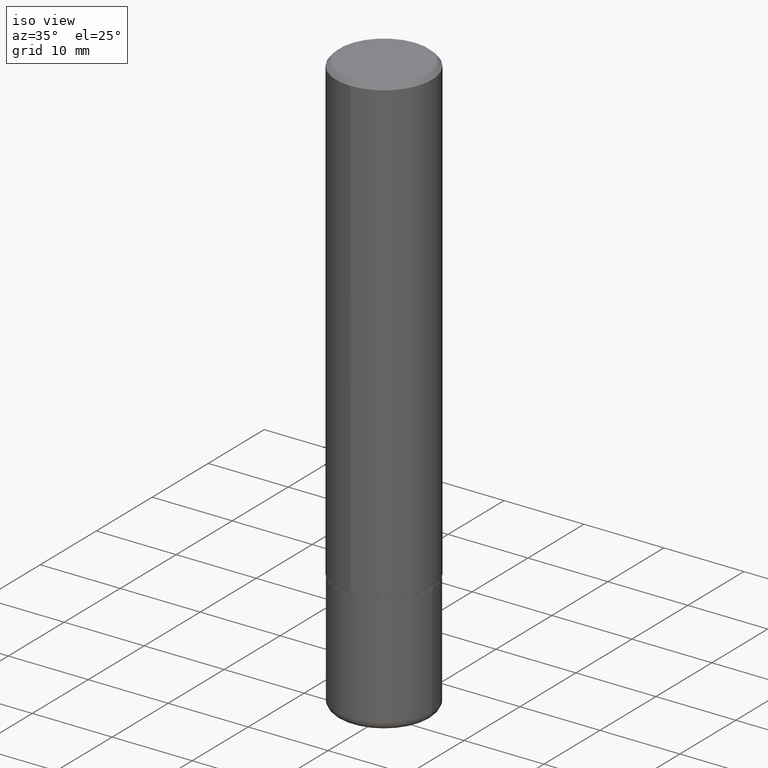
[diagram: clean part render]
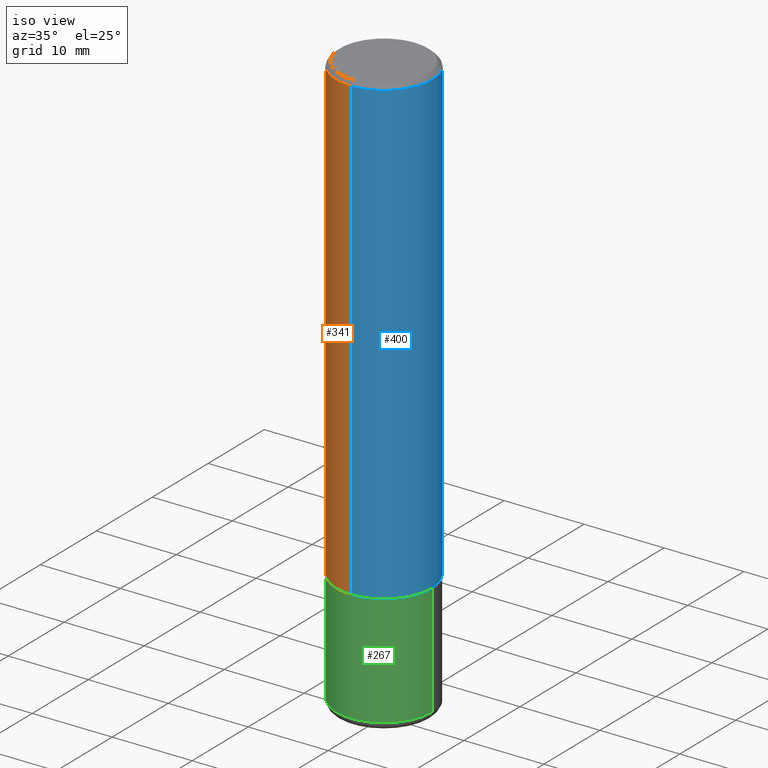
[diagram: same view with three faces highlighted in distinct colors, each labeled with its STEP entity id]
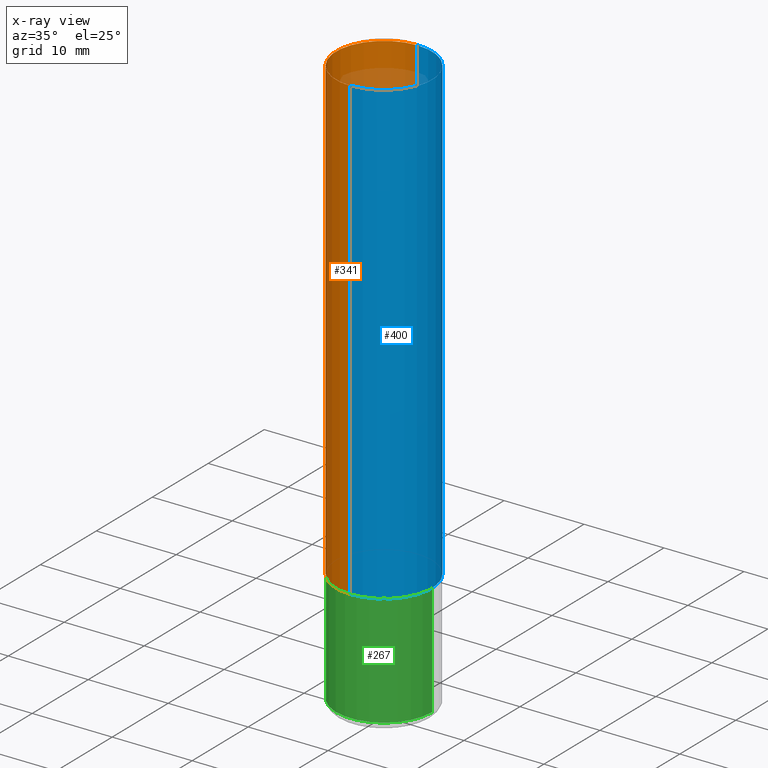
[diagram: x-ray of the same camera — body ghosted, the three highlighted faces saturated]
A machine part, iso view with three faces highlighted in distinct colors.
The next image is the same camera in x-ray (body ghosted, the three faces saturated) — at least one of them is partly hidden behind the body in this view.
Their STEP definitions:

[orange] entity #341 — the highlighted cylindrical surface (partial cylindrical patch) has radius 5.9995 mm, axis along (-0, 0, 1).
#1 = VECTOR ( 'NONE', #210, 39.37007874015748143 ) ;
#9 = DIRECTION ( 'NONE',  ( -2.441304056985800386E-29, 3.497445496739398544E-15, 1.000000000000000000 ) ) ;
#11 = DIRECTION ( 'NONE',  ( -2.441304056985800386E-29, 3.497445496739398544E-15, 1.000000000000000000 ) ) ;
#15 = CARTESIAN_POINT ( 'NONE',  ( -1.649375784469442291E-15, -0.2362000000000082922, -2.282399999999999096 ) ) ;
#16 = VERTEX_POINT ( 'NONE', #147 ) ;
#18 = DIRECTION ( 'NONE',  ( -2.441304056985800386E-29, 3.497445496739398544E-15, 1.000000000000000000 ) ) ;
#28 = EDGE_LOOP ( 'NONE', ( #228, #204, #30, #327 ) ) ;
#30 = ORIENTED_EDGE ( 'NONE', *, *, #38, .T. ) ;
#38 = EDGE_CURVE ( 'NONE', #231, #265, #302, .T. ) ;
#47 = DIRECTION ( 'NONE',  ( -6.982962677686265922E-15, -1.000000000000000000, 3.505890868245046486E-15 ) ) ;
#49 = EDGE_CURVE ( 'NONE', #16, #277, #397, .T. ) ;
#77 = CYLINDRICAL_SURFACE ( 'NONE', #402, 0.2362000000000001321 ) ;
#91 = CARTESIAN_POINT ( 'NONE',  ( 1.649375784469496131E-15, 0.2361999999999998823, -0.02000000000000091635 ) ) ;
#94 = CIRCLE ( 'NONE', #309, 0.2362000000000002986 ) ;
#109 = FACE_OUTER_BOUND ( 'NONE', #28, .T. ) ;
#116 = CARTESIAN_POINT ( 'NONE',  ( -1.649375784469496920E-15, -0.2362000000000001321, 8.260966263298463996E-16 ) ) ;
#129 = DIRECTION ( 'NONE',  ( -2.441304056985800386E-29, 3.497445496739398544E-15, 1.000000000000000000 ) ) ;
#146 = DIRECTION ( 'NONE',  ( -6.982962677686265922E-15, -1.000000000000000000, 3.469747663417772663E-15 ) ) ;
#147 = CARTESIAN_POINT ( 'NONE',  ( 1.678301941865386174E-15, 0.2361999999999923050, -2.282400000000000873 ) ) ;
#149 = CARTESIAN_POINT ( 'NONE',  ( 1.678301941865357380E-15, 0.2362000000000001321, -8.260966263298463996E-16 ) ) ;
#179 = CARTESIAN_POINT ( 'NONE',  ( 5.572032379664390786E-29, -7.982569601758002495E-15, -2.282399999999999984 ) ) ;
#204 = ORIENTED_EDGE ( 'NONE', *, *, #261, .T. ) ;
#210 = DIRECTION ( 'NONE',  ( -2.441304056985800386E-29, 3.497445496739398544E-15, 1.000000000000000000 ) ) ;
#228 = ORIENTED_EDGE ( 'NONE', *, *, #49, .F. ) ;
#231 = VERTEX_POINT ( 'NONE', #15 ) ;
#241 = EDGE_CURVE ( 'NONE', #277, #265, #363, .T. ) ;
#254 = CARTESIAN_POINT ( 'NONE',  ( 4.882608113971623124E-31, -6.994890993478827754E-17, -0.02000000000000009062 ) ) ;
#261 = EDGE_CURVE ( 'NONE', #16, #231, #94, .T. ) ;
#263 = AXIS2_PLACEMENT_3D ( 'NONE', #254, #18, #47 ) ;
#265 = VERTEX_POINT ( 'NONE', #399 ) ;
#277 = VERTEX_POINT ( 'NONE', #91 ) ;
#302 = LINE ( 'NONE', #116, #1 ) ;
#306 = DIRECTION ( 'NONE',  ( -6.982962677686265922E-15, -1.000000000000000000, 3.497445496739398544E-15 ) ) ;
#309 = AXIS2_PLACEMENT_3D ( 'NONE', #179, #129, #146 ) ;
#327 = ORIENTED_EDGE ( 'NONE', *, *, #241, .F. ) ;
#341 = ADVANCED_FACE ( 'NONE', ( #109 ), #77, .T. ) ;
#363 = CIRCLE ( 'NONE', #263, 0.2361999999999999655 ) ;
#379 = VECTOR ( 'NONE', #9, 39.37007874015748143 ) ;
#393 = CARTESIAN_POINT ( 'NONE',  ( 0.000000000000000000, 0.000000000000000000, 0.000000000000000000 ) ) ;
#397 = LINE ( 'NONE', #149, #379 ) ;
#399 = CARTESIAN_POINT ( 'NONE',  ( -1.620449627073634881E-15, -0.2362000000000000210, -0.01999999999999926142 ) ) ;
#402 = AXIS2_PLACEMENT_3D ( 'NONE', #393, #11, #306 ) ;

[blue] entity #400 — the highlighted cylindrical surface (partial cylindrical patch) has radius 5.9995 mm, axis along (-0, 0, 1).
#1 = VECTOR ( 'NONE', #210, 39.37007874015748143 ) ;
#9 = DIRECTION ( 'NONE',  ( -2.441304056985800386E-29, 3.497445496739398544E-15, 1.000000000000000000 ) ) ;
#15 = CARTESIAN_POINT ( 'NONE',  ( -1.649375784469442291E-15, -0.2362000000000082922, -2.282399999999999096 ) ) ;
#16 = VERTEX_POINT ( 'NONE', #147 ) ;
#38 = EDGE_CURVE ( 'NONE', #231, #265, #302, .T. ) ;
#49 = EDGE_CURVE ( 'NONE', #16, #277, #397, .T. ) ;
#63 = ORIENTED_EDGE ( 'NONE', *, *, #38, .F. ) ;
#70 = AXIS2_PLACEMENT_3D ( 'NONE', #266, #232, #98 ) ;
#72 = DIRECTION ( 'NONE',  ( -6.982962677686265922E-15, -1.000000000000000000, 3.469747663417772663E-15 ) ) ;
#86 = CIRCLE ( 'NONE', #380, 0.2362000000000002986 ) ;
#87 = CIRCLE ( 'NONE', #70, 0.2361999999999999655 ) ;
#88 = ORIENTED_EDGE ( 'NONE', *, *, #89, .T. ) ;
#89 = EDGE_CURVE ( 'NONE', #231, #16, #86, .T. ) ;
#91 = CARTESIAN_POINT ( 'NONE',  ( 1.649375784469496131E-15, 0.2361999999999998823, -0.02000000000000091635 ) ) ;
#98 = DIRECTION ( 'NONE',  ( -6.982962677686265922E-15, -1.000000000000000000, 3.505890868245046486E-15 ) ) ;
#113 = DIRECTION ( 'NONE',  ( -6.982962677686265922E-15, -1.000000000000000000, 3.497445496739398544E-15 ) ) ;
#116 = CARTESIAN_POINT ( 'NONE',  ( -1.649375784469496920E-15, -0.2362000000000001321, 8.260966263298463996E-16 ) ) ;
#120 = CARTESIAN_POINT ( 'NONE',  ( 5.572032379664390786E-29, -7.982569601758002495E-15, -2.282399999999999984 ) ) ;
#141 = FACE_OUTER_BOUND ( 'NONE', #319, .T. ) ;
#142 = DIRECTION ( 'NONE',  ( -2.441304056985800386E-29, 3.497445496739398544E-15, 1.000000000000000000 ) ) ;
#147 = CARTESIAN_POINT ( 'NONE',  ( 1.678301941865386174E-15, 0.2361999999999923050, -2.282400000000000873 ) ) ;
#149 = CARTESIAN_POINT ( 'NONE',  ( 1.678301941865357380E-15, 0.2362000000000001321, -8.260966263298463996E-16 ) ) ;
#173 = EDGE_CURVE ( 'NONE', #265, #277, #87, .T. ) ;
#177 = CARTESIAN_POINT ( 'NONE',  ( 0.000000000000000000, 0.000000000000000000, 0.000000000000000000 ) ) ;
#210 = DIRECTION ( 'NONE',  ( -2.441304056985800386E-29, 3.497445496739398544E-15, 1.000000000000000000 ) ) ;
#231 = VERTEX_POINT ( 'NONE', #15 ) ;
#232 = DIRECTION ( 'NONE',  ( -2.441304056985800386E-29, 3.497445496739398544E-15, 1.000000000000000000 ) ) ;
#265 = VERTEX_POINT ( 'NONE', #399 ) ;
#266 = CARTESIAN_POINT ( 'NONE',  ( 4.882608113971623124E-31, -6.994890993478827754E-17, -0.02000000000000009062 ) ) ;
#277 = VERTEX_POINT ( 'NONE', #91 ) ;
#294 = AXIS2_PLACEMENT_3D ( 'NONE', #177, #304, #113 ) ;
#302 = LINE ( 'NONE', #116, #1 ) ;
#304 = DIRECTION ( 'NONE',  ( -2.441304056985800386E-29, 3.497445496739398544E-15, 1.000000000000000000 ) ) ;
#316 = ORIENTED_EDGE ( 'NONE', *, *, #173, .F. ) ;
#319 = EDGE_LOOP ( 'NONE', ( #88, #347, #316, #63 ) ) ;
#347 = ORIENTED_EDGE ( 'NONE', *, *, #49, .T. ) ;
#379 = VECTOR ( 'NONE', #9, 39.37007874015748143 ) ;
#380 = AXIS2_PLACEMENT_3D ( 'NONE', #120, #142, #72 ) ;
#389 = CYLINDRICAL_SURFACE ( 'NONE', #294, 0.2362000000000001321 ) ;
#397 = LINE ( 'NONE', #149, #379 ) ;
#399 = CARTESIAN_POINT ( 'NONE',  ( -1.620449627073634881E-15, -0.2362000000000000210, -0.01999999999999926142 ) ) ;
#400 = ADVANCED_FACE ( 'NONE', ( #141 ), #389, .T. ) ;

[green] entity #267 — the highlighted cylindrical surface (partial cylindrical patch) has radius 5.9995 mm, axis along (-0, 0, 1).
#25 = AXIS2_PLACEMENT_3D ( 'NONE', #335, #43, #308 ) ;
#27 = ORIENTED_EDGE ( 'NONE', *, *, #233, .T. ) ;
#43 = DIRECTION ( 'NONE',  ( -2.445468806185136597E-29, 3.491481338843145583E-15, 1.000000000000000000 ) ) ;
#45 = CARTESIAN_POINT ( 'NONE',  ( 0.2361999999999999933, -1.649375784469496131E-15, 1.151752954443000088E-29 ) ) ;
#48 = ORIENTED_EDGE ( 'NONE', *, *, #289, .F. ) ;
#56 = LINE ( 'NONE', #342, #288 ) ;
#99 = VERTEX_POINT ( 'NONE', #151 ) ;
#107 = VERTEX_POINT ( 'NONE', #391 ) ;
#112 = EDGE_CURVE ( 'NONE', #199, #171, #407, .T. ) ;
#124 = CYLINDRICAL_SURFACE ( 'NONE', #155, 0.2361999999999999933 ) ;
#132 = ORIENTED_EDGE ( 'NONE', *, *, #165, .T. ) ;
#151 = CARTESIAN_POINT ( 'NONE',  ( 0.2361999999999998823, -1.154632878755427425E-14, -2.834599999999999120 ) ) ;
#155 = AXIS2_PLACEMENT_3D ( 'NONE', #212, #305, #249 ) ;
#165 = EDGE_CURVE ( 'NONE', #99, #171, #334, .T. ) ;
#171 = VERTEX_POINT ( 'NONE', #324 ) ;
#183 = DIRECTION ( 'NONE',  ( -2.445468806185136877E-29, 3.491481338843145188E-15, 1.000000000000000000 ) ) ;
#195 = DIRECTION ( 'NONE',  ( -2.445468806185136877E-29, 3.491481338843145188E-15, 1.000000000000000000 ) ) ;
#199 = VERTEX_POINT ( 'NONE', #234 ) ;
#200 = VECTOR ( 'NONE', #183, 39.37007874015748143 ) ;
#212 = CARTESIAN_POINT ( 'NONE',  ( 0.000000000000000000, 0.000000000000000000, 0.000000000000000000 ) ) ;
#233 = EDGE_CURVE ( 'NONE', #107, #99, #331, .T. ) ;
#234 = CARTESIAN_POINT ( 'NONE',  ( -0.2362000000000000766, -7.256398804234252280E-15, -2.283399999999999874 ) ) ;
#240 = DIRECTION ( 'NONE',  ( -2.445468806185136597E-29, 3.491481338843145583E-15, 1.000000000000000000 ) ) ;
#243 = CARTESIAN_POINT ( 'NONE',  ( 5.583983472043140562E-29, -7.972448489114438042E-15, -2.283399999999999874 ) ) ;
#249 = DIRECTION ( 'NONE',  ( 1.000000000000000000, -6.982962677686266711E-15, 4.876176775795936353E-29 ) ) ;
#250 = ORIENTED_EDGE ( 'NONE', *, *, #112, .F. ) ;
#267 = ADVANCED_FACE ( 'NONE', ( #303 ), #124, .T. ) ;
#288 = VECTOR ( 'NONE', #195, 39.37007874015748143 ) ;
#289 = EDGE_CURVE ( 'NONE', #107, #199, #56, .T. ) ;
#303 = FACE_OUTER_BOUND ( 'NONE', #338, .T. ) ;
#305 = DIRECTION ( 'NONE',  ( -2.445468806185136597E-29, 3.491481338843145583E-15, 1.000000000000000000 ) ) ;
#308 = DIRECTION ( 'NONE',  ( 1.000000000000000000, -6.982962677686265133E-15, 0.000000000000000000 ) ) ;
#324 = CARTESIAN_POINT ( 'NONE',  ( 0.2362000000000000210, -9.621824273583934567E-15, -2.283399999999999874 ) ) ;
#331 = CIRCLE ( 'NONE', #25, 0.2361999999999999933 ) ;
#334 = LINE ( 'NONE', #45, #200 ) ;
#335 = CARTESIAN_POINT ( 'NONE',  ( 6.931925878012386396E-29, -9.896953003084777729E-15, -2.834599999999999120 ) ) ;
#338 = EDGE_LOOP ( 'NONE', ( #48, #27, #132, #250 ) ) ;
#342 = CARTESIAN_POINT ( 'NONE',  ( -0.2361999999999999933, 1.678301941865356591E-15, -1.161852468318208757E-29 ) ) ;
#367 = DIRECTION ( 'NONE',  ( 1.000000000000000000, -6.982962677686268288E-15, 0.000000000000000000 ) ) ;
#383 = AXIS2_PLACEMENT_3D ( 'NONE', #243, #240, #367 ) ;
#391 = CARTESIAN_POINT ( 'NONE',  ( -0.2361999999999998823, -8.218651061219422913E-15, -2.834599999999999120 ) ) ;
#407 = CIRCLE ( 'NONE', #383, 0.2362000000000000210 ) ;